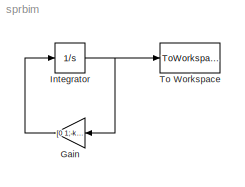
MODEL sprbim
KIND model
BLOCK [Gain] Gain
  Gain = [0 1;-k1/m1 0]
  Multiplication = Matrix(K*u)
  OutDataTypeStr = Inherit: Inherit via internal rule
  ParamDataTypeStr = Inherit: Inherit via internal rule
  SID = 2
  SaturateOnIntegerOverflow = off
BLOCK [Integrator] Integrator
  InitialCondition = [0;v0]
  Ports = [1, 1]
  SID = 1
BLOCK [ToWorkspace] To Workspace
  MaxDataPoints = inf
  Ports = [1]
  SID = 4
  SampleTime = -1
  SaveFormat = Timeseries
  VariableName = wpr_spr
LINE Gain:1 -> Integrator:1
NET Integrator:1 -> Gain:1, To Workspace:1
note: NET lines group one-source signal fan-out (src -> all destinations, sorted); 1:1 wires keep LINE
